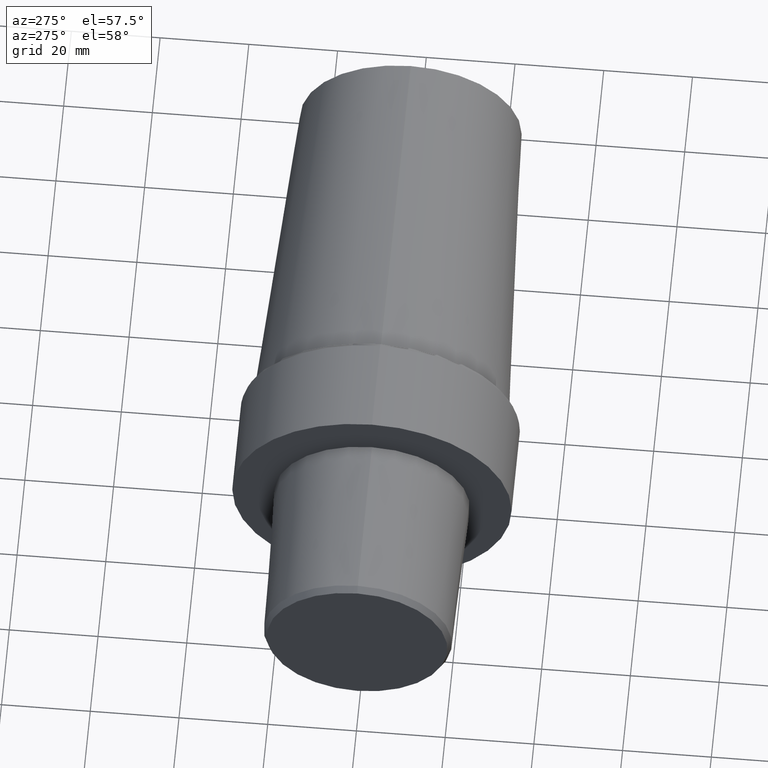
[diagram: clean part render]
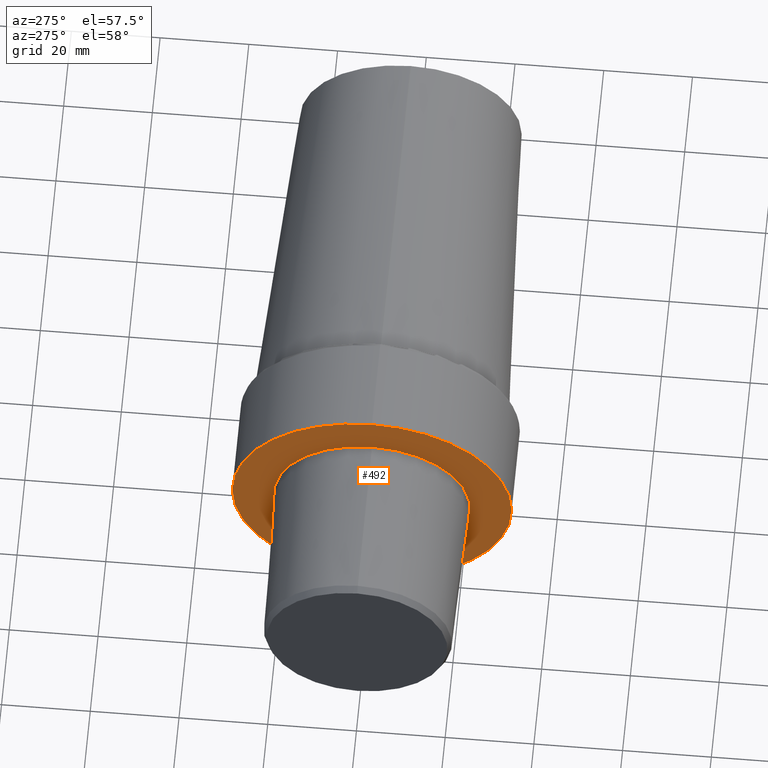
[diagram: same view with one face highlighted and labeled with its STEP entity id]
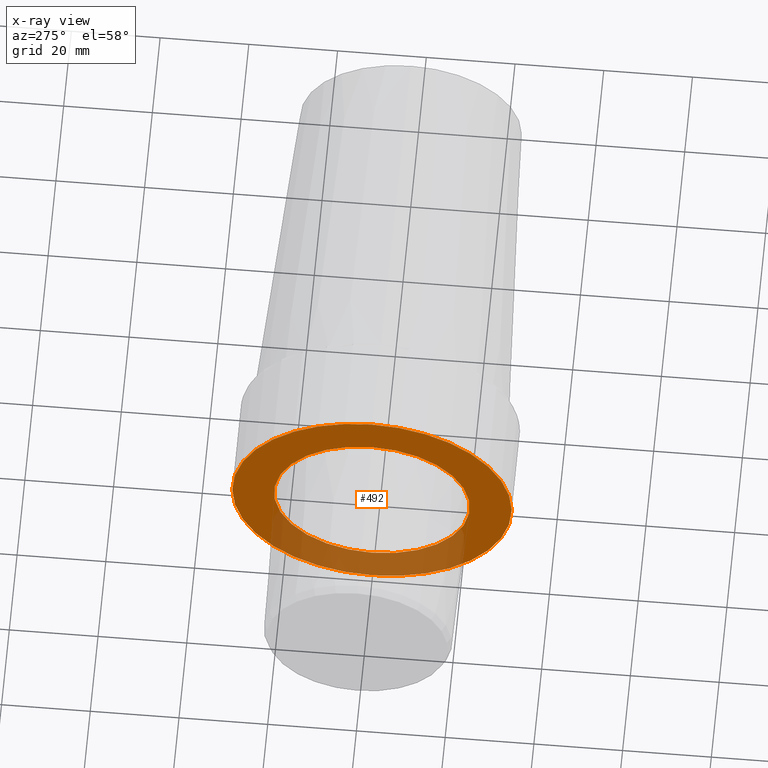
[diagram: x-ray of the same camera — body ghosted, the highlighted face saturated]
A machine part, auxiliary view. The second image highlights one B-rep face of the part: STEP entity #492.
The next image is the same camera in x-ray: the body ghosted, the highlighted face saturated — about 30% of this face is hidden behind the body in this view.
In plain terms, the highlighted planar face has unit normal (1, 0, 0).
Its self-contained STEP definition (entity closure, byte-faithful):
#13 = DIRECTION ( 'NONE',  ( 0.000000000000000000, 0.000000000000000000, 1.000000000000000000 ) ) ;
#17 = CARTESIAN_POINT ( 'NONE',  ( -1.638711037459195739E-09, 0.000000000000000000, 0.000000000000000000 ) ) ;
#22 = FACE_OUTER_BOUND ( 'NONE', #159, .T. ) ;
#38 = CIRCLE ( 'NONE', #226, 22.07078639032614120 ) ;
#53 = CIRCLE ( 'NONE', #328, 31.49249997071599338 ) ;
#66 = EDGE_CURVE ( 'NONE', #223, #305, #457, .T. ) ;
#71 = DIRECTION ( 'NONE',  ( 0.000000000000000000, 0.000000000000000000, 1.000000000000000000 ) ) ;
#75 = ORIENTED_EDGE ( 'NONE', *, *, #110, .T. ) ;
#96 = DIRECTION ( 'NONE',  ( 0.000000000000000000, 0.000000000000000000, 1.000000000000000000 ) ) ;
#98 = CARTESIAN_POINT ( 'NONE',  ( -1.638710153022111881E-09, 31.49249997071599338, 0.000000000000000000 ) ) ;
#100 = ORIENTED_EDGE ( 'NONE', *, *, #66, .F. ) ;
#106 = ORIENTED_EDGE ( 'NONE', *, *, #424, .F. ) ;
#109 = CARTESIAN_POINT ( 'NONE',  ( -1.638711037459195739E-09, 0.000000000000000000, 0.000000000000000000 ) ) ;
#110 = EDGE_CURVE ( 'NONE', #255, #377, #414, .T. ) ;
#127 = CARTESIAN_POINT ( 'NONE',  ( -1.638711037459195739E-09, 0.000000000000000000, 0.000000000000000000 ) ) ;
#137 = FACE_BOUND ( 'NONE', #277, .T. ) ;
#149 = DIRECTION ( 'NONE',  ( -1.000000000000000000, 0.000000000000000000, 0.000000000000000000 ) ) ;
#154 = CARTESIAN_POINT ( 'NONE',  ( -1.638711037459195739E-09, 0.000000000000000000, 22.07078639032614120 ) ) ;
#159 = EDGE_LOOP ( 'NONE', ( #517, #75 ) ) ;
#169 = DIRECTION ( 'NONE',  ( -1.000000000000000000, 0.000000000000000000, 0.000000000000000000 ) ) ;
#206 = AXIS2_PLACEMENT_3D ( 'NONE', #98, #521, #267 ) ;
#223 = VERTEX_POINT ( 'NONE', #351 ) ;
#226 = AXIS2_PLACEMENT_3D ( 'NONE', #109, #480, #71 ) ;
#248 = DIRECTION ( 'NONE',  ( 0.000000000000000000, 0.000000000000000000, 1.000000000000000000 ) ) ;
#255 = VERTEX_POINT ( 'NONE', #308 ) ;
#267 = DIRECTION ( 'NONE',  ( 0.000000000000000000, 1.000000000000000000, 0.000000000000000000 ) ) ;
#277 = EDGE_LOOP ( 'NONE', ( #106, #100 ) ) ;
#302 = AXIS2_PLACEMENT_3D ( 'NONE', #463, #169, #248 ) ;
#305 = VERTEX_POINT ( 'NONE', #154 ) ;
#308 = CARTESIAN_POINT ( 'NONE',  ( -1.638711037459195739E-09, 3.856718928628543502E-15, -31.49249997071599338 ) ) ;
#328 = AXIS2_PLACEMENT_3D ( 'NONE', #17, #149, #96 ) ;
#351 = CARTESIAN_POINT ( 'NONE',  ( -1.638711037459195739E-09, 2.702891790757786195E-15, -22.07078639032614120 ) ) ;
#353 = PLANE ( 'NONE',  #206 ) ;
#377 = VERTEX_POINT ( 'NONE', #509 ) ;
#390 = DIRECTION ( 'NONE',  ( -1.000000000000000000, 0.000000000000000000, 0.000000000000000000 ) ) ;
#414 = CIRCLE ( 'NONE', #524, 31.49249997071599338 ) ;
#424 = EDGE_CURVE ( 'NONE', #305, #223, #38, .T. ) ;
#457 = CIRCLE ( 'NONE', #302, 22.07078639032614120 ) ;
#463 = CARTESIAN_POINT ( 'NONE',  ( -1.638711037459195739E-09, 0.000000000000000000, 0.000000000000000000 ) ) ;
#480 = DIRECTION ( 'NONE',  ( -1.000000000000000000, 0.000000000000000000, 0.000000000000000000 ) ) ;
#492 = ADVANCED_FACE ( 'NONE', ( #137, #22 ), #353, .F. ) ;
#504 = EDGE_CURVE ( 'NONE', #377, #255, #53, .T. ) ;
#509 = CARTESIAN_POINT ( 'NONE',  ( -1.638711037459195739E-09, 0.000000000000000000, 31.49249997071599338 ) ) ;
#517 = ORIENTED_EDGE ( 'NONE', *, *, #504, .T. ) ;
#521 = DIRECTION ( 'NONE',  ( 1.000000000000000000, 0.000000000000000000, 0.000000000000000000 ) ) ;
#524 = AXIS2_PLACEMENT_3D ( 'NONE', #127, #390, #13 ) ;